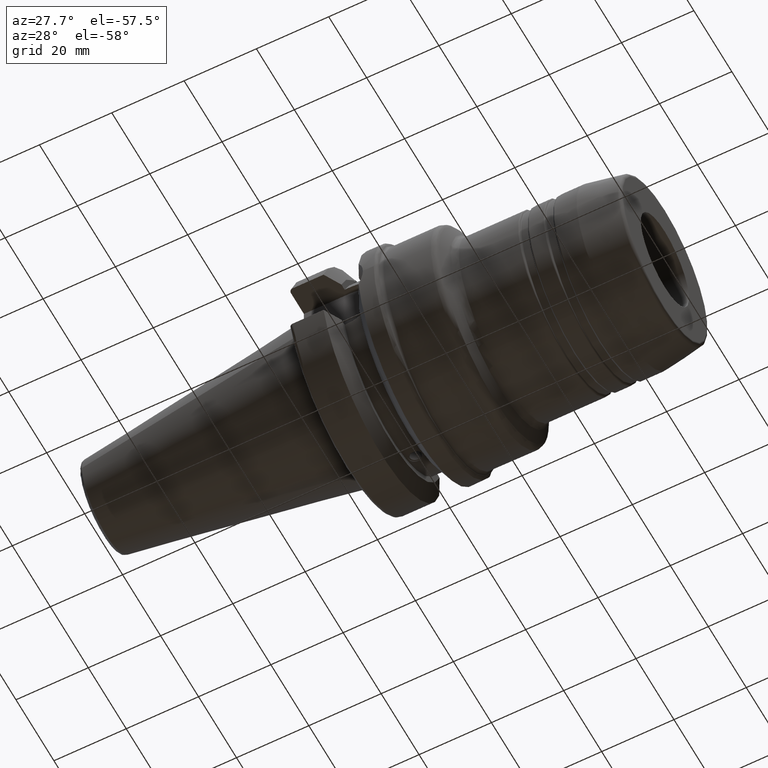
[diagram: clean part render]
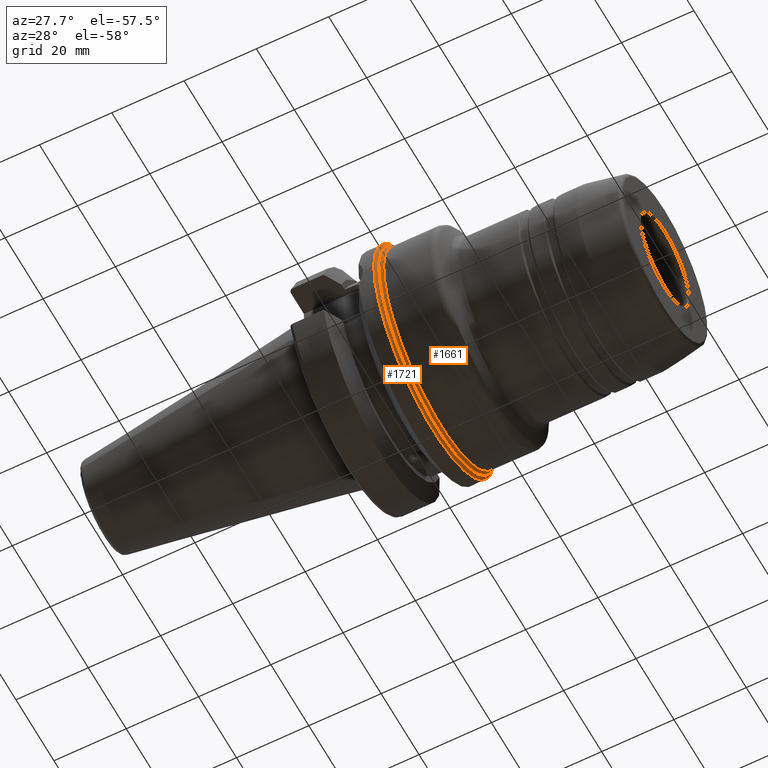
[diagram: same view with one multi-face feature highlighted, each face labeled with its STEP entity id]
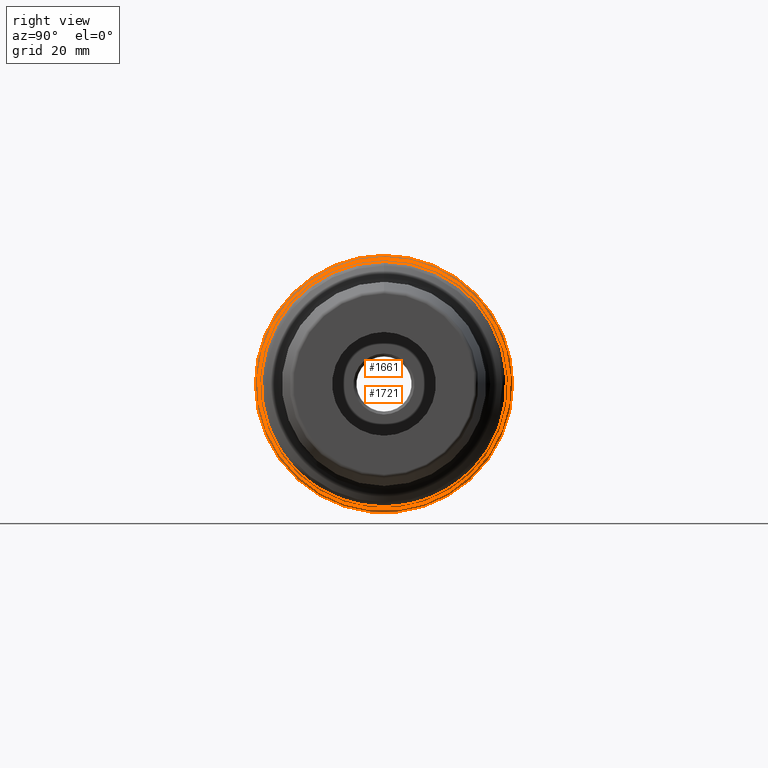
[diagram: same view with one multi-face feature highlighted, each face labeled with its STEP entity id]
A machine part, auxiliary view. The highlighted faces form ONE feature: a constant-radius fillet chain: 2 tangent blend faces with common blend radius 1 mm. The faces share edges in the B-rep.
A second angle (right view) of the same feature is appended — it is thin or edge-on in the first view.
Their STEP definitions:
[1] entity #1661 (Torus):
#69=TOROIDAL_SURFACE('',#1840,31.,1.);
#160=FACE_OUTER_BOUND('',#252,.T.);
#252=EDGE_LOOP('',(#1236,#1237,#1238,#1239));
#485=CIRCLE('',#1769,30.);
#536=CIRCLE('',#1841,30.75);
#537=CIRCLE('',#1842,1.);
#638=VERTEX_POINT('',#2714);
#679=VERTEX_POINT('',#2837);
#831=EDGE_CURVE('',#638,#638,#485,.T.);
#891=EDGE_CURVE('',#679,#679,#536,.T.);
#892=EDGE_CURVE('',#679,#638,#537,.T.);
#1236=ORIENTED_EDGE('',*,*,#891,.T.);
#1237=ORIENTED_EDGE('',*,*,#892,.T.);
#1238=ORIENTED_EDGE('',*,*,#831,.T.);
#1239=ORIENTED_EDGE('',*,*,#892,.F.);
#1661=ADVANCED_FACE('',(#160),#69,.F.);
#1769=AXIS2_PLACEMENT_3D('',#2716,#2062,#2063);
#1840=AXIS2_PLACEMENT_3D('',#2836,#2213,#2214);
#1841=AXIS2_PLACEMENT_3D('',#2838,#2215,#2216);
#1842=AXIS2_PLACEMENT_3D('',#2839,#2217,#2218);
#2062=DIRECTION('center_axis',(-1.,0.,0.));
#2063=DIRECTION('ref_axis',(0.,1.22464679914735E-16,-1.));
#2213=DIRECTION('center_axis',(1.,0.,0.));
#2214=DIRECTION('ref_axis',(0.,1.22464679914735E-16,-1.));
#2215=DIRECTION('center_axis',(1.,0.,0.));
#2216=DIRECTION('ref_axis',(0.,1.22464679914735E-16,-1.));
#2217=DIRECTION('center_axis',(0.,-1.,-2.44929359829471E-16));
#2218=DIRECTION('ref_axis',(0.,-2.44929359829471E-16,1.));
#2714=CARTESIAN_POINT('',(27.9364916731037,0.,30.));
#2716=CARTESIAN_POINT('Origin',(27.9364916731037,0.,0.));
#2836=CARTESIAN_POINT('Origin',(27.9364916731037,0.,0.));
#2837=CARTESIAN_POINT('',(26.9682458365519,-7.53157781475622E-15,30.75));
#2838=CARTESIAN_POINT('Origin',(26.9682458365519,0.,0.));
#2839=CARTESIAN_POINT('Origin',(27.9364916731037,-7.59281015471359E-15,
31.));
[2] entity #1721 (Torus):
#75=TOROIDAL_SURFACE('',#1998,30.5,1.00000000000001);
#220=FACE_OUTER_BOUND('',#325,.T.);
#325=EDGE_LOOP('',(#1594,#1595,#1596,#1597,#1598,#1599));
#536=CIRCLE('',#1841,30.75);
#568=CIRCLE('',#1920,31.5);
#569=CIRCLE('',#1921,31.5);
#572=CIRCLE('',#1924,31.5);
#616=CIRCLE('',#1999,1.00000000000001);
#679=VERTEX_POINT('',#2837);
#752=VERTEX_POINT('',#3156);
#753=VERTEX_POINT('',#3157);
#754=VERTEX_POINT('',#3159);
#891=EDGE_CURVE('',#679,#679,#536,.T.);
#988=EDGE_CURVE('',#752,#753,#568,.T.);
#989=EDGE_CURVE('',#754,#752,#569,.T.);
#994=EDGE_CURVE('',#753,#754,#572,.T.);
#1067=EDGE_CURVE('',#679,#753,#616,.T.);
#1594=ORIENTED_EDGE('',*,*,#891,.F.);
#1595=ORIENTED_EDGE('',*,*,#1067,.T.);
#1596=ORIENTED_EDGE('',*,*,#994,.T.);
#1597=ORIENTED_EDGE('',*,*,#989,.T.);
#1598=ORIENTED_EDGE('',*,*,#988,.T.);
#1599=ORIENTED_EDGE('',*,*,#1067,.F.);
#1721=ADVANCED_FACE('',(#220),#75,.T.);
#1841=AXIS2_PLACEMENT_3D('',#2838,#2215,#2216);
#1920=AXIS2_PLACEMENT_3D('',#3158,#2406,#2407);
#1921=AXIS2_PLACEMENT_3D('',#3160,#2408,#2409);
#1924=AXIS2_PLACEMENT_3D('',#3176,#2415,#2416);
#1998=AXIS2_PLACEMENT_3D('',#3366,#2584,#2585);
#1999=AXIS2_PLACEMENT_3D('',#3367,#2586,#2587);
#2215=DIRECTION('center_axis',(1.,0.,0.));
#2216=DIRECTION('ref_axis',(0.,1.22464679914735E-16,-1.));
#2406=DIRECTION('center_axis',(1.,0.,0.));
#2407=DIRECTION('ref_axis',(0.,0.,-1.));
#2408=DIRECTION('center_axis',(1.,0.,0.));
#2409=DIRECTION('ref_axis',(0.,0.,-1.));
#2415=DIRECTION('center_axis',(1.,0.,0.));
#2416=DIRECTION('ref_axis',(0.,0.,-1.));
#2584=DIRECTION('center_axis',(1.,0.,0.));
#2585=DIRECTION('ref_axis',(0.,0.,-1.));
#2586=DIRECTION('center_axis',(0.,-1.,-1.22464679914735E-16));
#2587=DIRECTION('ref_axis',(0.,-1.22464679914735E-16,1.));
#2837=CARTESIAN_POINT('',(26.9682458365519,-7.53157781475622E-15,30.75));
#2838=CARTESIAN_POINT('Origin',(26.9682458365519,0.,0.));
#3156=CARTESIAN_POINT('',(26.,31.5,0.));
#3157=CARTESIAN_POINT('',(26.,-3.85763741731416E-15,31.5));
#3158=CARTESIAN_POINT('Origin',(26.,0.,0.));
#3159=CARTESIAN_POINT('',(26.,-31.5,-3.85763741731416E-15));
#3160=CARTESIAN_POINT('Origin',(26.,0.,0.));
#3176=CARTESIAN_POINT('Origin',(26.,0.,0.));
#3366=CARTESIAN_POINT('Origin',(26.,0.,0.));
#3367=CARTESIAN_POINT('Origin',(26.,-3.73517273739943E-15,30.5));